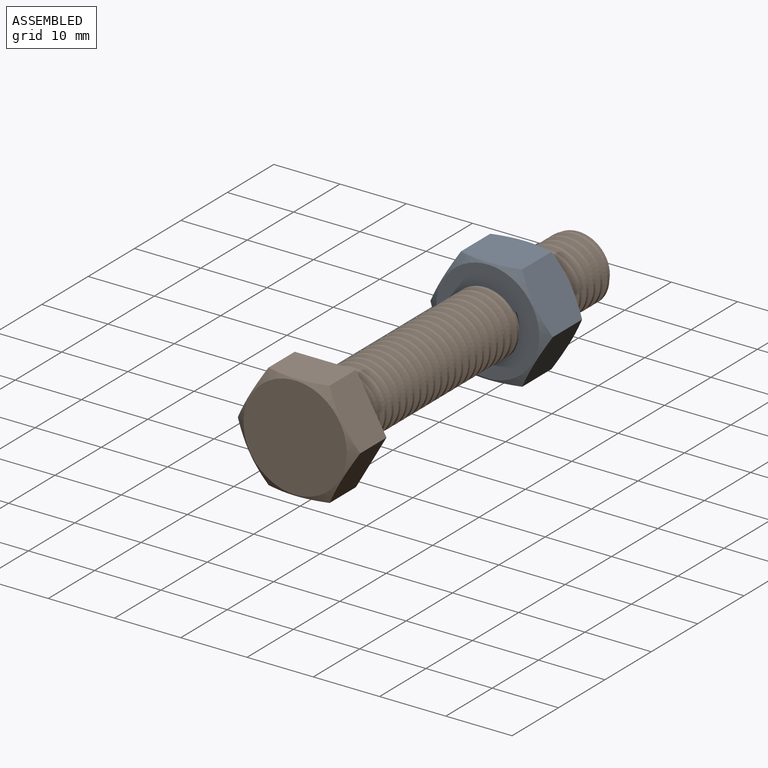
[diagram: assembled view]
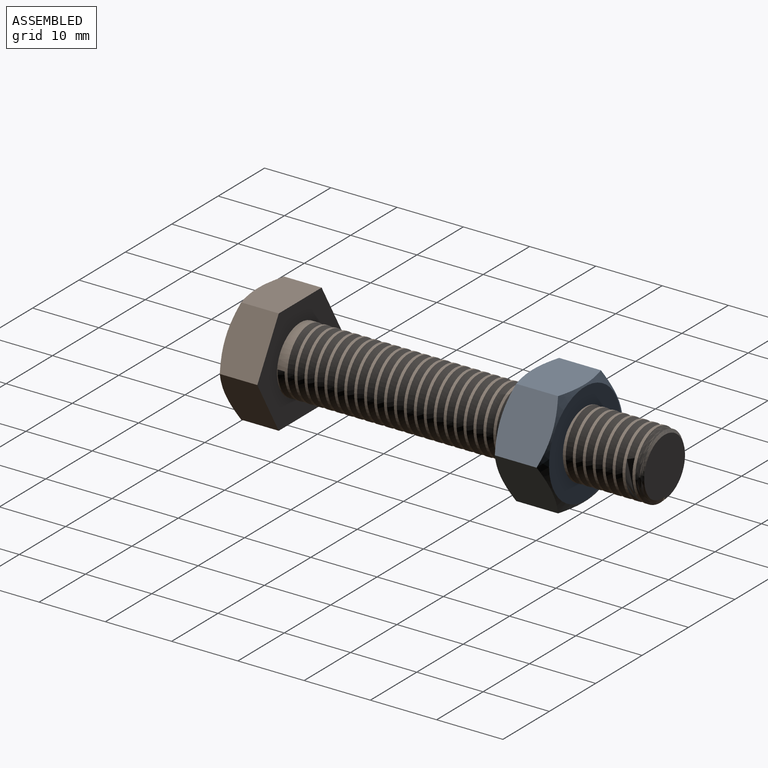
[diagram: assembled view, second angle]
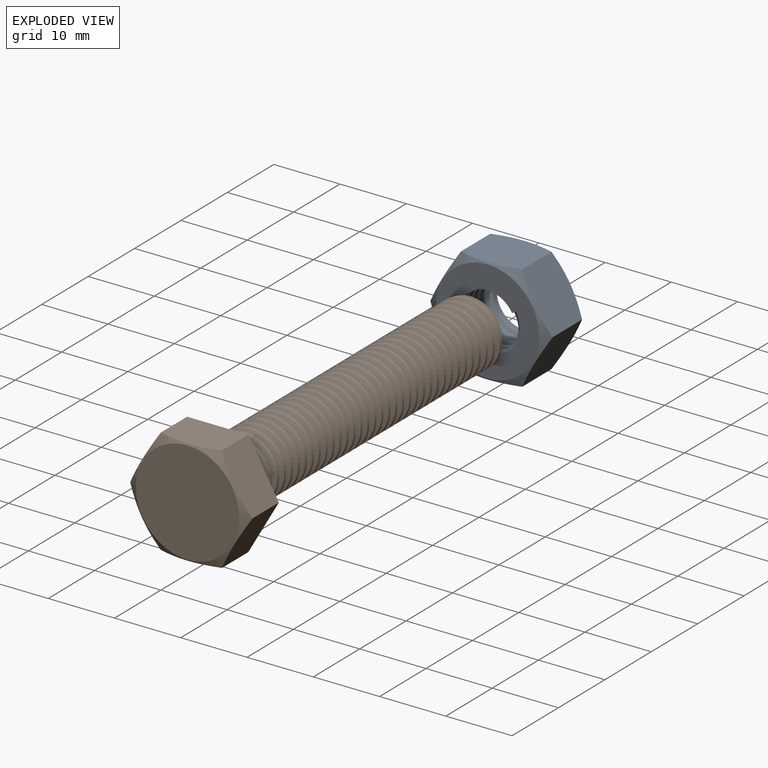
[diagram: exploded view]
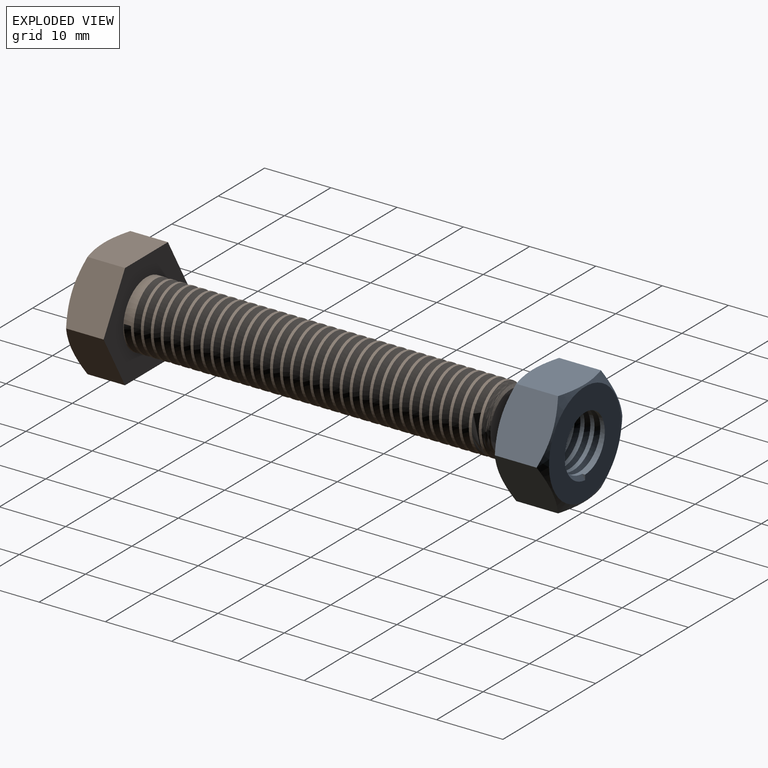
[diagram: exploded view, second angle]
ASSEMBLY  parts=2 mates=2
PART A: 15 faces, bbox 18.8x9.2x18.8 mm
  f0: plane 15.91x15.91mm, normal (0,1,0), area 130.1mm2, adj f1,f2,f11,f12
  f1: cylinder r=4.25mm len=8.5mm, axis (0,-1,0), area 94.4mm2, adj f0,f9,f11,f12,f13,f14
  f2: cone r=7.77mm half-angle=60deg, axis (0,-1,0), area 36.8mm2, adj f0,f3,f4,f5,f6,f7,f8
  f3: plane 9.24x7.74mm, normal (0,0,-1), area 67mm2, adj f2,f6,f8,f10
  f4: plane 8x7.75mm, normal (-0.87,0,0.5), area 67mm2, adj f2,f6,f7,f10
  f5: plane 8x7.75mm, normal (0.87,0,0.5), area 67mm2, adj f2,f7,f8,f10
  f6: plane 8x7.75mm, normal (-0.87,0,-0.5), area 67mm2, adj f2,f3,f4,f10
  f7: plane 9.25x7.74mm, normal (0,0,1), area 67mm2, adj f2,f4,f5,f10
  f8: plane 8x7.75mm, normal (0.87,0,-0.5), area 67mm2, adj f2,f3,f5,f10
  f9: plane 15.91x15.91mm, normal (0,-1,0), area 130.1mm2, adj f1,f10,f13,f14
  f10: cone r=7.77mm half-angle=60deg, axis (0,1,0), area 36.8mm2, adj f3,f4,f5,f6,f7,f8,f9
  f11: plane 0.75x0.43mm, normal (1,0,0), area 0.2mm2, adj f0,f1,f14
  f12: bspline ~11.55x10mm, area 131mm2, adj f0,f1,f13,f14
  f13: plane 0.65x0.43mm, normal (0.5,0,-0.87), area 0.2mm2, adj f1,f9,f12
  f14: bspline ~11.55x10mm, area 130.9mm2, adj f1,f9,f11,f12
PART B: 52 faces, bbox 18.6x62.1x18.6 mm
  f0: plane 8.92x8.92mm, normal (0,1,0), area 60.3mm2, adj f41,f48,f50
  f1: cylinder r=5mm len=10mm, axis (0,-1,0), area 29.4mm2, adj f37,f38,f49,f50,f51
  f2: cylinder r=5mm len=5mm, axis (0,-1,0), area 1.4mm2, adj f3,f41,f50
  f3: cylinder r=5mm len=10mm, axis (0,-1,0), area 13.7mm2, adj f2,f4,f41,f50,f51
  f4: cylinder r=5mm len=10mm, axis (0,-1,0), area 13.7mm2, adj f3,f5,f50,f51
  f5: cylinder r=5mm len=10mm, axis (0,-1,0), area 13.8mm2, adj f4,f6,f50,f51
  f6: cylinder r=5mm len=10mm, axis (0,-1,0), area 13.7mm2, adj f5,f7,f50,f51
  f7: cylinder r=5mm len=10mm, axis (0,-1,0), area 13.7mm2, adj f6,f8,f50,f51
  f8: cylinder r=5mm len=10mm, axis (0,-1,0), area 13.8mm2, adj f7,f9,f50,f51
  f9: cylinder r=5mm len=10mm, axis (0,-1,0), area 13.8mm2, adj f8,f10,f50,f51
  f10: cylinder r=5mm len=10mm, axis (0,-1,0), area 13.8mm2, adj f9,f11,f50,f51
  f11: cylinder r=5mm len=10mm, axis (0,-1,0), area 13.7mm2, adj f10,f12,f50,f51
  f12: cylinder r=5mm len=10mm, axis (0,-1,0), area 13.7mm2, adj f11,f13,f50,f51
  f13: cylinder r=5mm len=10mm, axis (0,-1,0), area 13.8mm2, adj f12,f14,f50,f51
  f14: cylinder r=5mm len=10mm, axis (0,-1,0), area 13.8mm2, adj f13,f15,f50,f51
  f15: cylinder r=5mm len=10mm, axis (0,-1,0), area 13.8mm2, adj f14,f16,f50,f51
  f16: cylinder r=5mm len=10mm, axis (0,-1,0), area 13.7mm2, adj f15,f17,f50,f51
  f17: cylinder r=5mm len=10mm, axis (0,-1,0), area 13.8mm2, adj f16,f18,f50,f51
  f18: cylinder r=5mm len=10mm, axis (0,-1,0), area 13.8mm2, adj f17,f19,f50,f51
  f19: cylinder r=5mm len=10mm, axis (0,-1,0), area 13.8mm2, adj f18,f20,f50,f51
  f20: cylinder r=5mm len=10mm, axis (0,-1,0), area 13.7mm2, adj f19,f21,f50,f51
  f21: cylinder r=5mm len=10mm, axis (0,-1,0), area 13.7mm2, adj f20,f22,f50,f51
  f22: cylinder r=5mm len=10mm, axis (0,-1,0), area 13.8mm2, adj f21,f23,f50,f51
  f23: cylinder r=5mm len=10mm, axis (0,-1,0), area 13.8mm2, adj f22,f24,f50,f51
  f24: cylinder r=5mm len=10mm, axis (0,-1,0), area 13.8mm2, adj f23,f25,f50,f51
  f25: cylinder r=5mm len=10mm, axis (0,-1,0), area 13.7mm2, adj f24,f26,f50,f51
  f26: cylinder r=5mm len=10mm, axis (0,-1,0), area 13.7mm2, adj f25,f27,f50,f51
  f27: cylinder r=5mm len=10mm, axis (0,-1,0), area 13.8mm2, adj f26,f28,f50,f51
  f28: cylinder r=5mm len=10mm, axis (0,-1,0), area 13.7mm2, adj f27,f29,f50,f51
  f29: cylinder r=5mm len=10mm, axis (0,-1,0), area 13.7mm2, adj f28,f30,f50,f51
  f30: cylinder r=5mm len=10mm, axis (0,-1,0), area 13.7mm2, adj f29,f31,f50,f51
  f31: cylinder r=5mm len=10mm, axis (0,-1,0), area 13.8mm2, adj f30,f32,f50,f51
  f32: cylinder r=5mm len=10mm, axis (0,-1,0), area 13.8mm2, adj f31,f33,f50,f51
  f33: cylinder r=5mm len=10mm, axis (0,-1,0), area 13.7mm2, adj f32,f34,f50,f51
  f34: cylinder r=5mm len=10mm, axis (0,-1,0), area 13.7mm2, adj f33,f35,f50,f51
  f35: cylinder r=5mm len=10mm, axis (0,-1,0), area 13.7mm2, adj f34,f36,f50,f51
  f36: cylinder r=5mm len=10mm, axis (0,-1,0), area 13.8mm2, adj f35,f37,f50,f51
  f37: cylinder r=5mm len=10mm, axis (0,-1,0), area 13.8mm2, adj f1,f36,f50,f51
  f38: plane 18.48x16mm, normal (0,1,0), area 143.2mm2, adj f1,f42,f43,f44,f45,f46,f47
  f39: cone r=7.8mm half-angle=60deg, axis (0,1,0), area 35.3mm2, adj f40,f42,f43,f44,f45,f46,f47
  f40: plane 15.6x15.6mm, normal (0,-1,0), area 191.1mm2, adj f39
  f41: cone r=5mm half-angle=45deg, axis (0,-1,0), area 14.1mm2, adj f0,f2,f3,f48,f50,f51
  f42: plane 9.25x6.39mm, normal (0,0,1), area 56.7mm2, adj f38,f39,f45,f47
  f43: plane 8x6.39mm, normal (-0.87,0,-0.5), area 56.7mm2, adj f38,f39,f45,f46
  f44: plane 8x6.39mm, normal (0.87,0,-0.5), area 56.7mm2, adj f38,f39,f46,f47
  f45: plane 8x6.39mm, normal (-0.87,0,0.5), area 56.7mm2, adj f38,f39,f42,f43
  f46: plane 9.25x6.39mm, normal (0,0,-1), area 56.7mm2, adj f38,f39,f43,f44
  f47: plane 8x6.39mm, normal (0.87,0,0.5), area 56.7mm2, adj f38,f39,f42,f44
  f48: plane 0.76x0.44mm, normal (1,0,0), area 0.1mm2, adj f0,f41,f51
  f49: plane 1.06x0.92mm, normal (0.1,0,-0.99), area 0.5mm2, adj f1,f50,f51
  f50: bspline ~55.03x11.55mm, area 1091mm2, adj f0,f1,f2,f3,f4,f5,f6,f7
  f51: bspline ~55.03x11.55mm, area 1100mm2, adj f1,f3,f4,f5,f6,f7,f8,f9
PLACE A t=(-10.92,15.8,8.25)mm
PLACE B t=(-10.92,-23.25,8.25)mm
MATE planar A.f9 <-> B.f39  axis (0,-1,0) through (-11.02,11.75,8.25)mm
MATE slider B.f41 <-> A.f1  axis (0,1,0) through (-10.92,31.75,8.25)mm
